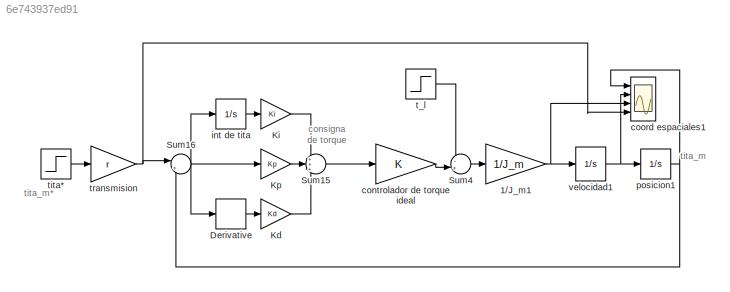
MODEL slx_6e743937ed91
KIND model
CONFIG AbsTol = auto
CONFIG EnableMultiTasking = on
CONFIG FixedStep = auto
CONFIG MaxStep = auto
CONFIG MinStep = auto
CONFIG RelTol = 1e-3
CONFIG SampleTimeConstraint = Unconstrained
CONFIG Solver = ode45
CONFIG SolverName = ode45
CONFIG StartTime = 0.0
CONFIG StopTime = 10.0
BLOCK [Gain]  transmision
  Gain = r
  OutDataTypeStr = Inherit: Inherit via internal rule
  ParamDataTypeStr = Inherit: Inherit via internal rule
  SaturateOnIntegerOverflow = off
BLOCK [Gain] 1//J_m1
  Gain = 1/J_m
  OutDataTypeStr = Inherit: Inherit via internal rule
  ParamDataTypeStr = Inherit: Inherit via internal rule
  SaturateOnIntegerOverflow = off
BLOCK [Derivative] Derivative
BLOCK [Gain] Kd
  Gain = Kd
  OutDataTypeStr = Inherit: Inherit via internal rule
  ParamDataTypeStr = Inherit: Inherit via internal rule
  SaturateOnIntegerOverflow = off
BLOCK [Gain] Ki
  Gain = Ki
  OutDataTypeStr = Inherit: Inherit via internal rule
  ParamDataTypeStr = Inherit: Inherit via internal rule
  SaturateOnIntegerOverflow = off
BLOCK [Gain] Kp
  Gain = Kp
  OutDataTypeStr = Inherit: Inherit via internal rule
  ParamDataTypeStr = Inherit: Inherit via internal rule
  SaturateOnIntegerOverflow = off
BLOCK [Sum] Sum15
  IconShape = round
  InputSameDT = off
  Inputs = +++
  OutDataTypeStr = Inherit: Inherit via internal rule
  Ports = [3, 1]
  SaturateOnIntegerOverflow = off
BLOCK [Sum] Sum16
  IconShape = round
  InputSameDT = off
  Inputs = |+-
  OutDataTypeStr = Inherit: Inherit via internal rule
  Ports = [2, 1]
  SaturateOnIntegerOverflow = off
BLOCK [Sum] Sum4
  IconShape = round
  InputSameDT = off
  Inputs = -+|
  OutDataTypeStr = Inherit: Inherit via internal rule
  Ports = [2, 1]
  SaturateOnIntegerOverflow = off
BLOCK [Gain] controlador de torque ideal 
  OutDataTypeStr = Inherit: Inherit via internal rule
  ParamDataTypeStr = Inherit: Inherit via internal rule
  SaturateOnIntegerOverflow = off
BLOCK [Scope] coord espaciales1
  NumInputPorts = 4
  Ports = [4]
  ScopeSpecificationString = Simulink.scopes.TimeScopeBlockCfg('CurrentConfiguration', extmgr.ConfigurationSet(extmgr.Configuration('Core','General UI',true,'FigureColor',[0.8 0.8 0.8]),extmgr.Configuration('Core','Source UI',true),extmgr.Configuration('Sources','WiredSimulink',true,'DataLoggingVariableName','ScopeData1','DataLoggingSaveFormat','StructureWithTime','DataLoggingMaxPoints','8000','DataLoggingDecimation','1','Dat...<+7003ch>
BLOCK [Integrator] int de tita
  Ports = [1, 1]
BLOCK [Integrator] posicion1
  Ports = [1, 1]
BLOCK [Step] t_l
  After = T_l
  SampleTime = 0
  Time = .3
BLOCK [Step] tita*
  After = 2*pi
  SampleTime = 0
  Time = 0.1
BLOCK [Integrator] velocidad1
  ContinuousStateAttributes = 'velocidad'
  Ports = [1, 1]
ANNOTATION (root): consigna de torque
ANNOTATION (root): tita_m
ANNOTATION (root): tita_m*
NET  transmision:1 -> Sum16:1, coord espaciales1:4
NET 1//J_m1:1 -> coord espaciales1:3, velocidad1:1
LINE Derivative:1 -> Kd:1
LINE Kd:1 -> Sum15:3
LINE Ki:1 -> Sum15:1
LINE Kp:1 -> Sum15:2
LINE Sum15:1 -> controlador de torque ideal :1
NET Sum16:1 -> Derivative:1, Kp:1, int de tita:1
LINE Sum4:1 -> 1//J_m1:1
LINE controlador de torque ideal :1 -> Sum4:2
LINE int de tita:1 -> Ki:1
NET posicion1:1 -> Sum16:2, coord espaciales1:1
LINE t_l:1 -> Sum4:1
LINE tita*:1 ->  transmision:1
NET velocidad1:1 -> coord espaciales1:2, posicion1:1
note: NET lines group one-source signal fan-out (src -> all destinations, sorted); 1:1 wires keep LINE
